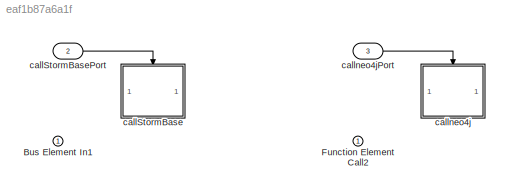
MODEL slx_eaf1b87a6a1f
KIND model
CONFIG AbsTol = auto
CONFIG EnableMultiTasking = off
CONFIG FixedStep = auto
CONFIG MaxStep = auto
CONFIG MinStep = auto
CONFIG RelTol = 1e-3
CONFIG SampleTimeConstraint = Unconstrained
CONFIG SolverName = FixedStepAuto
CONFIG StartTime = 0.0
CONFIG StopTime = 10.0
BLOCK [Inport] Bus Element In1
  AllowServiceAccess = on
BLOCK [Inport] Function Element Call2
  AllowServiceAccess = on
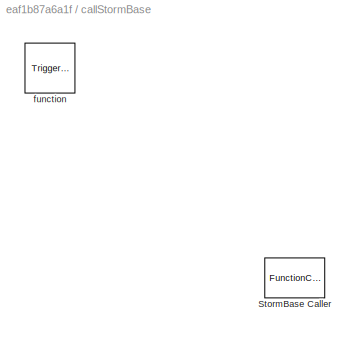
BLOCK [SubSystem] callStormBase
BLOCK [FunctionCaller] callStormBase/StormBase Caller
  FunctionPrototype = orm = graphconn.StormBase(graphconn,path)
  InputArgumentSpecifications = <Enter example>
  OutputArgumentSpecifications = <Enter example>
BLOCK [TriggerPort] callStormBase/function
  StatesWhenEnabling = held
  TriggerType = function-call
  VariantControl = (inherit)
BLOCK [Inport] callStormBasePort
  OutputFunctionCall = on
  Port = 2
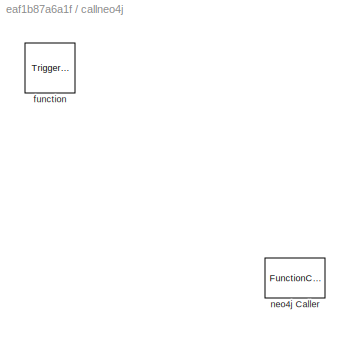
BLOCK [SubSystem] callneo4j
BLOCK [TriggerPort] callneo4j/function
  StatesWhenEnabling = held
  TriggerType = function-call
  VariantControl = (inherit)
BLOCK [FunctionCaller] callneo4j/neo4j Caller
  FunctionPrototype = graphconn = graphconn.neo4j(db,username,password)
  InputArgumentSpecifications = <Enter example>
  OutputArgumentSpecifications = <Enter example>
BLOCK [Inport] callneo4jPort
  OutputFunctionCall = on
  Port = 3
LINE callStormBasePort:1 -> callStormBase:trigger
LINE callneo4jPort:1 -> callneo4j:trigger
